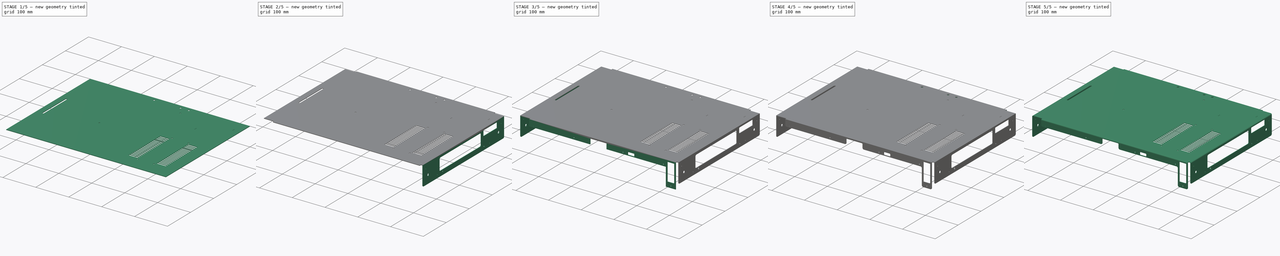
[diagram: build sequence overview — one tinted view per stage of 5, left to right]
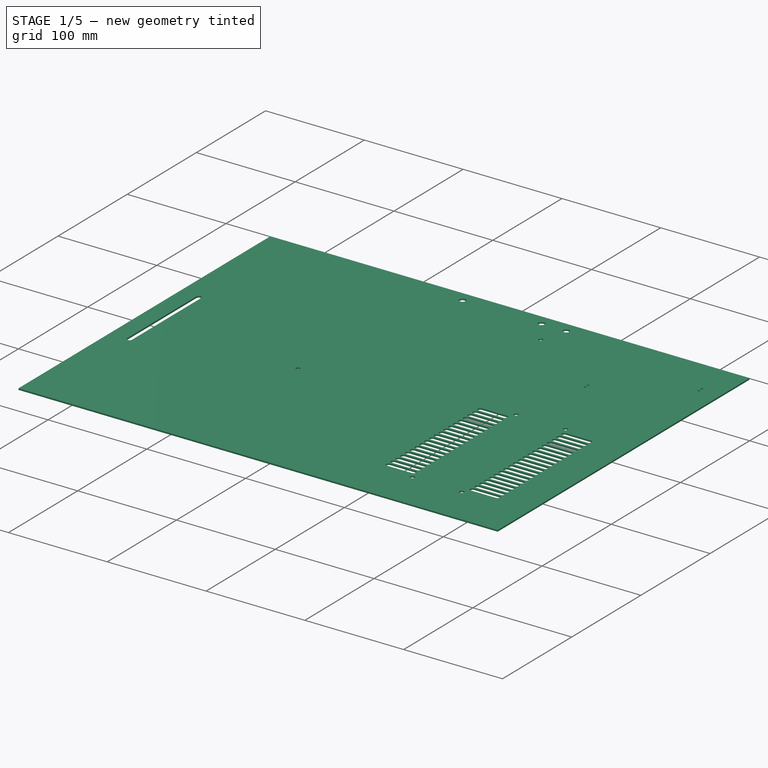
[diagram: stage 1 of 5 — iso view after this stage's code; geometry added in this stage tinted green]
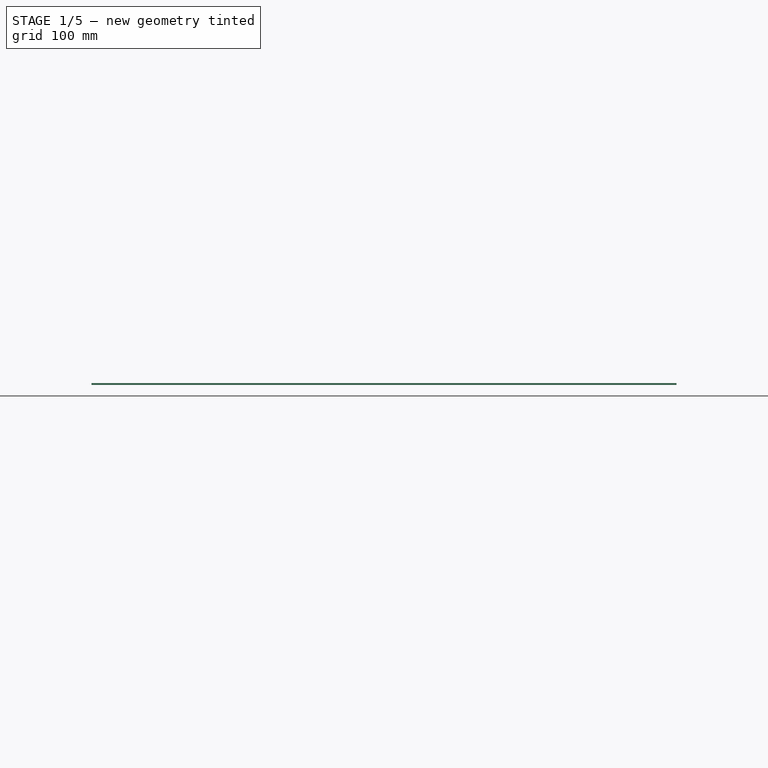
[diagram: stage 1 of 5 — front view after this stage's code; geometry added in this stage tinted green]
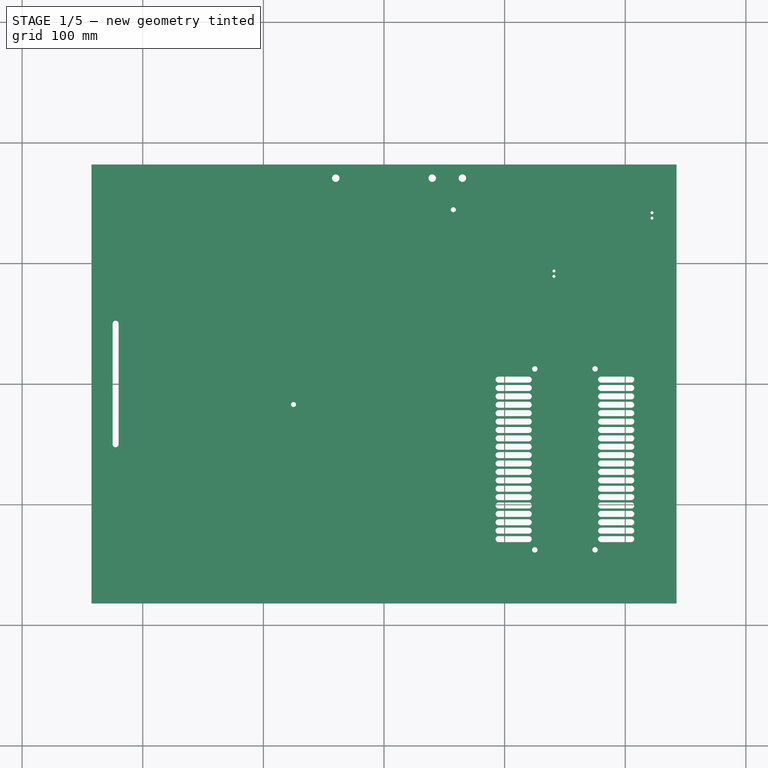
[diagram: stage 1 of 5 — top view after this stage's code; geometry added in this stage tinted green]
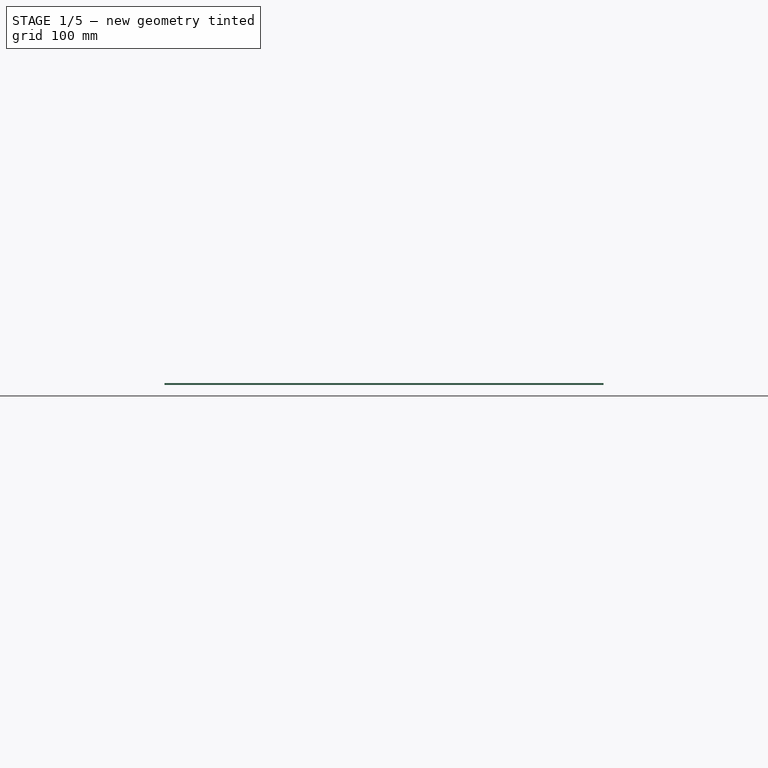
[diagram: stage 1 of 5 — right view after this stage's code; geometry added in this stage tinted green]
FCSTD DOCUMENT  (FreeCAD 0.14R3310 (Git))
Label: 13. PLACA BASE ESTRUCTURA
License: CC-BY 3.0
LicenseURL: http://creativecommons.org/licenses/by/3.0/
objects: PartDesign::Fillet×10, Sketcher::SketchObject×7, PartDesign::Pad×6, Part::FeaturePython×1, Part::Cut×1, PartDesign::Pocket×1, PartDesign::Chamfer×1
note: 34 computed .brp shape members not serialized (recipe doc carries the construction recipe); baked Part::Feature solids carry a one-line shape summary decoded from their .brp

FEATURE [Sketcher::SketchObject] Sketch
  sketch-geometry (23):
    g0: LineSegment StartX=-242.5 StartY=182 StartZ=0 EndX=242.5 EndY=182 EndZ=0
    g1: LineSegment StartX=242.5 StartY=182 StartZ=0 EndX=242.5 EndY=-182 EndZ=0
    g2: LineSegment StartX=242.5 StartY=-182 StartZ=0 EndX=-242.5 EndY=-182 EndZ=0
    g3: LineSegment StartX=-242.5 StartY=-182 StartZ=0 EndX=-242.5 EndY=182 EndZ=0
    g4: LineSegment StartX=-225 StartY=50 StartZ=0 EndX=-225 EndY=-50 EndZ=0
    g5: LineSegment StartX=-220 StartY=50 StartZ=0 EndX=-220 EndY=-50 EndZ=0
    g6: ArcOfCircle CenterX=-222.5 CenterY=50 CenterZ=0 NormalX=0 NormalY=0 NormalZ=1 Radius=2.5 StartAngle=6.329e-09 EndAngle=3.14159
    g7: ArcOfCircle CenterX=-222.5 CenterY=-50 CenterZ=0 NormalX=0 NormalY=0 NormalZ=1 Radius=2.5 StartAngle=3.14159 EndAngle=6.28319
    g8: Circle CenterX=-75 CenterY=-17 CenterZ=0 NormalX=0 NormalY=0 NormalZ=1 Radius=2.07
    g9: LineSegment [constr] StartX=-75 StartY=170.7 StartZ=0 EndX=75 EndY=170.7 EndZ=0
    g10: Circle CenterX=-40 CenterY=170.7 CenterZ=0 NormalX=0 NormalY=0 NormalZ=1 Radius=3.1
    g11: Circle CenterX=40 CenterY=170.7 CenterZ=0 NormalX=0 NormalY=0 NormalZ=1 Radius=3.1
    g12: Circle CenterX=65 CenterY=170.7 CenterZ=0 NormalX=0 NormalY=0 NormalZ=1 Radius=3.1
    g13: Circle CenterX=57.5 CenterY=144.5 CenterZ=0 NormalX=0 NormalY=0 NormalZ=1 Radius=2.07
    g14: Circle CenterX=222.17 CenterY=142 CenterZ=0 NormalX=0 NormalY=0 NormalZ=1 Radius=1.23
    g15: Circle CenterX=222.17 CenterY=137.5 CenterZ=0 NormalX=0 NormalY=0 NormalZ=1 Radius=1.23
    g16: Circle CenterX=140.89 CenterY=93.74 CenterZ=0 NormalX=0 NormalY=0 NormalZ=1 Radius=1.23
    g17: Circle CenterX=140.89 CenterY=89.24 CenterZ=0 NormalX=0 NormalY=0 NormalZ=1 Radius=1.23
    g18: LineSegment [constr] StartX=150 StartY=0 StartZ=0 EndX=150 EndY=-182 EndZ=0
    g19: Circle CenterX=125 CenterY=12.5 CenterZ=0 NormalX=0 NormalY=0 NormalZ=1 Radius=2.25
    g20: Circle CenterX=125 CenterY=-137.5 CenterZ=0 NormalX=0 NormalY=0 NormalZ=1 Radius=2.25
    g21: Circle CenterX=175 CenterY=-137.5 CenterZ=0 NormalX=0 NormalY=0 NormalZ=1 Radius=2.25
    g22: Circle CenterX=175 CenterY=12.5 CenterZ=0 NormalX=0 NormalY=0 NormalZ=1 Radius=2.25
  constraints (70):
    c: Coincident(g0,g1)
    c: Coincident(g1,g2)
    c: Coincident(g2,g3)
    c: Coincident(g3,g0)
    c: Horizontal(g0)
    c: Horizontal(g2)
    c: Vertical(g1)
    c: Vertical(g3)
    c: Symmetric(g0,g1,g-1)
    c: Distance(g0) = 485
    c: Distance(g3) = 364
    c: Vertical(g4)
    c: Vertical(g5)
    c: Coincident(g6,g4)
    c: Coincident(g6,g5)
    c: Tangent(g6,g5)
    c: Tangent(g4,g6)
    c: Coincident(g7,g5)
    c: Coincident(g7,g4)
    c: Tangent(g7,g4)
    c: Tangent(g7,g5)
    c: Symmetric(g7,g6,g-1)
    c: DistanceY(g5) = -100
    c: Distance(g4,g3) = 17.5
    c: Radius(g7) = 2.5
    c: DistanceY(g-1,g8) = -17
    c: DistanceX(g-2,g8) = -75
    c: Radius(g8) = 2.07
    c: Horizontal(g9)
    c: Symmetric(g9,g9,g-2)
    c: DistanceX(g9) = 150
    c: Distance(g9,g0) = 11.3
    c: PointOnObject(g10,g9)
    c: PointOnObject(g12,g9)
    c: Equal(g11,g12)
    c: Equal(g12,g10)
    c: Radius(g10) = 3.1
    c: DistanceX(g-2,g10) = -40
    c: Distance(g10,g11) = 80
    c: PointOnObject(g11,g9)
    c: Distance(g12,g11) = 25
    c: Radius(g13) = 2.07
    c: DistanceX(g-2,g13) = 57.5
    c: Distance(g13,g0) = 37.5
    c: Equal(g14,g15)
    c: Radius(g14) = 1.23
    c: Distance(g14,g0) = 40
    c: Distance(g14,g1) = 20.33
    c: Distance(g15,g1) = 20.33
    c: Distance(g15,g14) = 4.5
    c: Equal(g17,g16)
    c: Equal(g16,g15)
    c: Distance(g16,g0) = 88.26
    c: Distance(g16,g1) = 101.61
    c: Distance(g17,g1) = 101.61
    c: Distance(g17,g16) = 4.5
    c: PointOnObject(g18,g-1)
    c: PointOnObject(g18,g2)
    c: Vertical(g18)
    c: DistanceX(g-2,g18) = 150
    c: Distance(g19,g18) = 25
    c: DistanceY(g-1,g19) = 12.5
    c: Radius(g19) = 2.25
    c: Equal(g20,g19)
    c: Distance(g20,g19) = 150
    c: Distance(g20,g18) = 25
    c: Equal(g21,g20)
    c: Symmetric(g21,g20,g18)
    c: Equal(g22,g19)
    c: Symmetric(g22,g19,g18)
FEATURE [PartDesign::Pad] Pad
  Length = 1.5
  Length2 = 100
  Sketch = -> Sketch
  Type = 0
FEATURE [Sketcher::SketchObject] Sketch001
  sketch-geometry (8):
    g0: LineSegment StartX=95 StartY=6.15 StartZ=0 EndX=120 EndY=6.15 EndZ=0
    g1: LineSegment StartX=95 StartY=1.15 StartZ=0 EndX=120 EndY=1.15 EndZ=0
    g2: LineSegment StartX=180 StartY=6.15 StartZ=0 EndX=205 EndY=6.15 EndZ=0
    g3: LineSegment StartX=180 StartY=1.15 StartZ=0 EndX=205 EndY=1.15 EndZ=0
    g4: ArcOfCircle CenterX=95 CenterY=3.65 CenterZ=0 NormalX=0 NormalY=0 NormalZ=1 Radius=2.5 StartAngle=1.5708 EndAngle=4.71239
    g5: ArcOfCircle CenterX=120 CenterY=3.65 CenterZ=0 NormalX=0 NormalY=0 NormalZ=1 Radius=2.5 StartAngle=4.71239 EndAngle=7.85397
    g6: ArcOfCircle CenterX=180 CenterY=3.65 CenterZ=0 NormalX=0 NormalY=0 NormalZ=1 Radius=2.5 StartAngle=1.5708 EndAngle=4.71239
    g7: ArcOfCircle CenterX=205 CenterY=3.65 CenterZ=0 NormalX=0 NormalY=0 NormalZ=1 Radius=2.5 StartAngle=4.7124 EndAngle=7.85398
  constraints (28):
    c: Horizontal(g0)
    c: Horizontal(g1)
    c: Horizontal(g2)
    c: Horizontal(g3)
    c: Coincident(g4,g0)
    c: Coincident(g4,g1)
    c: Coincident(g5,g0)
    c: Coincident(g5,g1)
    c: Tangent(g0,g5)
    c: Tangent(g4,g0)
    c: Tangent(g1,g4)
    c: Tangent(g1,g5)
    c: DistanceX(g0) = 25
    c: Radius(g5) = 2.5
    c: DistanceY(g-1,g5) = 3.65
    c: DistanceX(g-2,g5) = 120
    c: DistanceX(g3) = 25
    c: Coincident(g6,g2)
    c: Coincident(g6,g3)
    c: Tangent(g2,g6)
    c: Tangent(g3,g6)
    c: Coincident(g7,g2)
    c: Coincident(g7,g3)
    c: Radius(g7) = 2.5
    c: DistanceY(g-1,g6) = 3.65
    c: DistanceX(g-2,g6) = 180
    c: Tangent(g7,g2)
    c: Tangent(g7,g3)
FEATURE [PartDesign::Pad] Pad001
  Length = 5
  Length2 = 100
  Midplane = true
  Sketch = -> Sketch001
  Type = 0
FEATURE [Part::FeaturePython] Array  # Draft array (typed FeaturePython)
  Angle = 360
  ArrayType = 0
  Axis = (0,0,1)
  Base = -> Pad001
  Center = (0,0,0)
  IntervalX = (1,0,0)
  IntervalY = (0,-6.96,0)
  IntervalZ = (0,0,1)
  NumberPolar = 1
  NumberX = 1
  NumberY = 20
  NumberZ = 1
FEATURE [Part::Cut] Cut
  Base = -> Pad
  Tool = -> Array
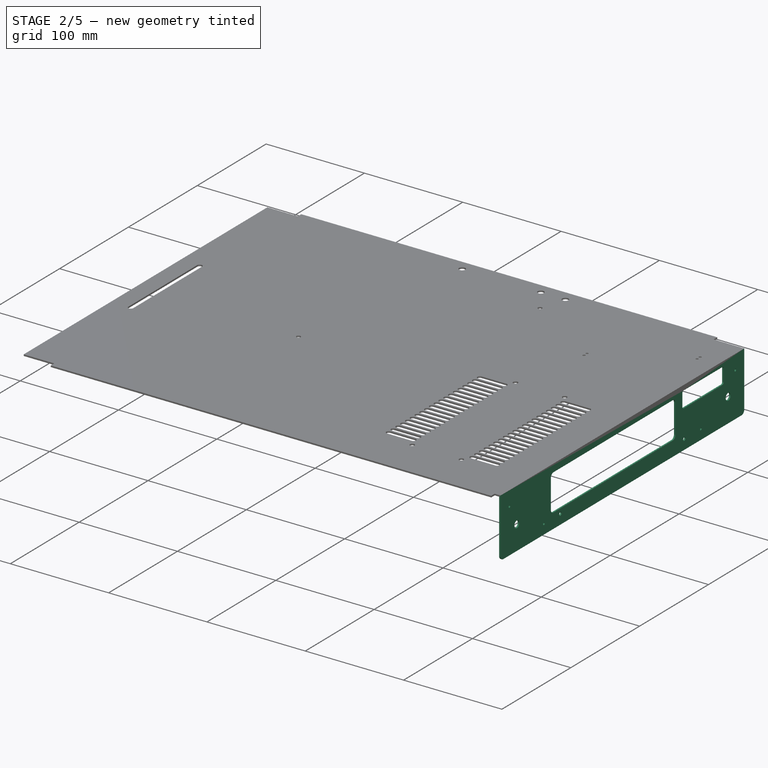
[diagram: stage 2 of 5 — iso view after this stage's code; geometry added in this stage tinted green]
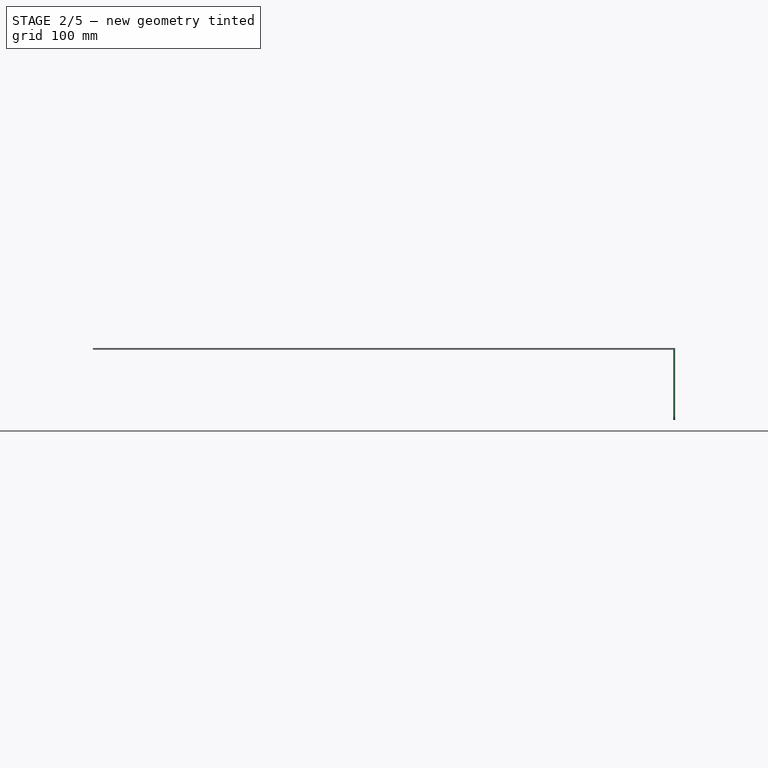
[diagram: stage 2 of 5 — front view after this stage's code; geometry added in this stage tinted green]
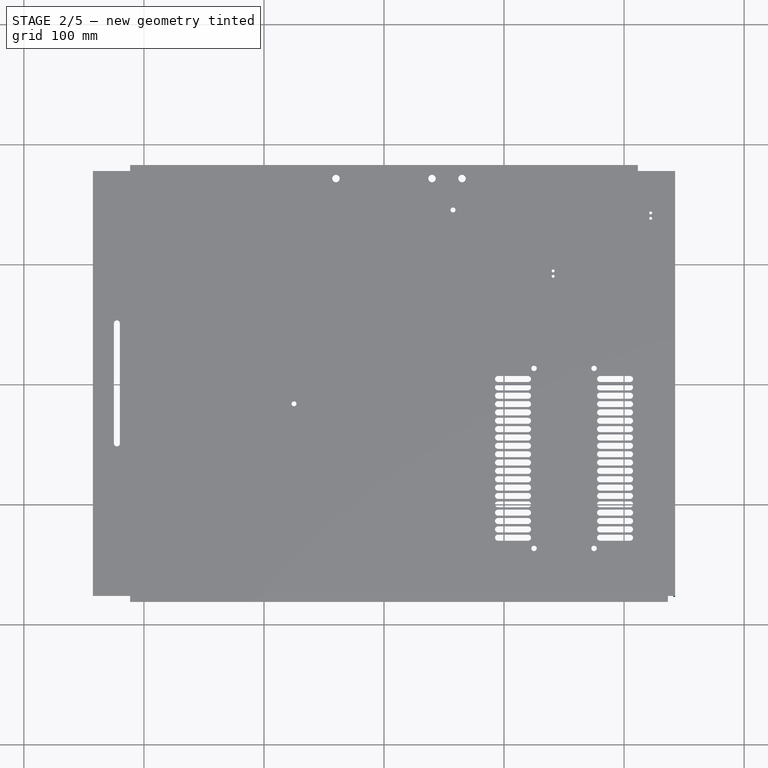
[diagram: stage 2 of 5 — top view after this stage's code; geometry added in this stage tinted green]
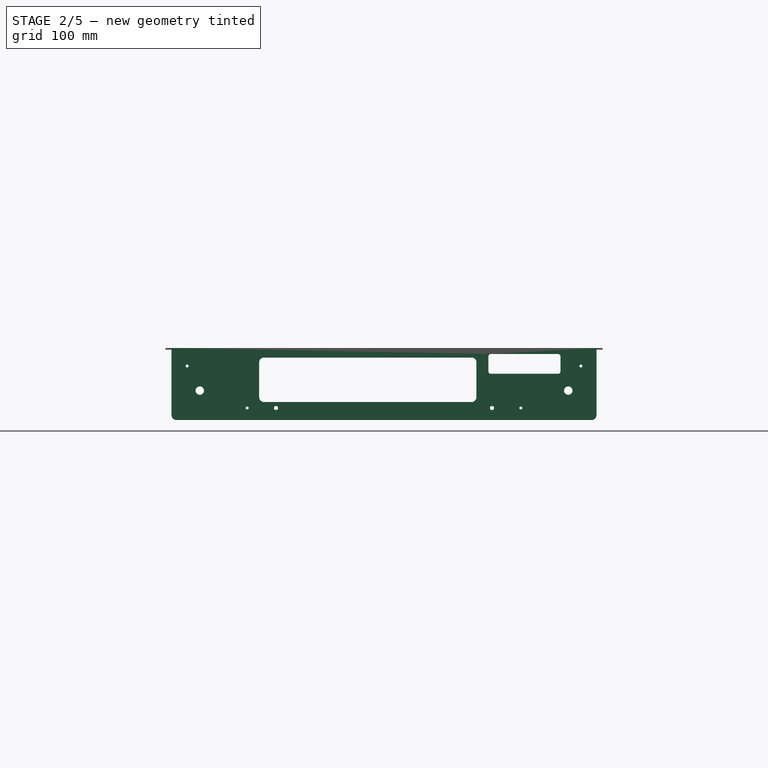
[diagram: stage 2 of 5 — right view after this stage's code; geometry added in this stage tinted green]
FEATURE [Sketcher::SketchObject] Sketch002
  ExternalGeometry = -> [Cut]
  Placement = pos=(0,0,1.5) rot=(0,0,1;0rad)
  Support = -> Cut [Face5]
  sketch-geometry (16):
    g0: LineSegment StartX=-242.5 StartY=182 StartZ=0 EndX=-211.5 EndY=182 EndZ=0
    g1: LineSegment StartX=-211.5 StartY=182 StartZ=0 EndX=-211.5 EndY=177 EndZ=0
    g2: LineSegment StartX=-211.5 StartY=177 StartZ=0 EndX=-242.5 EndY=177 EndZ=0
    g3: LineSegment StartX=-242.5 StartY=177 StartZ=0 EndX=-242.5 EndY=182 EndZ=0
    g4: LineSegment StartX=-242.5 StartY=-182 StartZ=0 EndX=-211.5 EndY=-182 EndZ=0
    g5: LineSegment StartX=-211.5 StartY=-182 StartZ=0 EndX=-211.5 EndY=-177 EndZ=0
    g6: LineSegment StartX=-211.5 StartY=-177 StartZ=0 EndX=-242.5 EndY=-177 EndZ=0
    g7: LineSegment StartX=-242.5 StartY=-177 StartZ=0 EndX=-242.5 EndY=-182 EndZ=0
    g8: LineSegment StartX=242.5 StartY=182 StartZ=0 EndX=211.5 EndY=182 EndZ=0
    g9: LineSegment StartX=211.5 StartY=182 StartZ=0 EndX=211.5 EndY=177 EndZ=0
    g10: LineSegment StartX=211.5 StartY=177 StartZ=0 EndX=242.5 EndY=177 EndZ=0
    g11: LineSegment StartX=242.5 StartY=177 StartZ=0 EndX=242.5 EndY=182 EndZ=0
    g12: LineSegment StartX=242.5 StartY=-182 StartZ=0 EndX=236.5 EndY=-182 EndZ=0
    g13: LineSegment StartX=236.5 StartY=-182 StartZ=0 EndX=236.5 EndY=-177 EndZ=0
    g14: LineSegment StartX=236.5 StartY=-177 StartZ=0 EndX=242.5 EndY=-177 EndZ=0
    g15: LineSegment StartX=242.5 StartY=-177 StartZ=0 EndX=242.5 EndY=-182 EndZ=0
  constraints (42):
    c: Coincident(g0,g1)
    c: Coincident(g1,g2)
    c: Coincident(g2,g3)
    c: Coincident(g3,g0)
    c: Horizontal(g0)
    c: Horizontal(g2)
    c: Vertical(g1)
    c: Vertical(g3)
    c: Coincident(g0,g-4)
    c: DistanceX(g2) = -31
    c: DistanceY(g1) = -5
    c: Coincident(g4,g5)
    c: Coincident(g5,g6)
    c: Coincident(g6,g7)
    c: Coincident(g7,g4)
    c: Horizontal(g4)
    c: Horizontal(g6)
    c: Vertical(g5)
    c: Vertical(g7)
    c: Coincident(g4,g-4)
    c: Symmetric(g5,g1,g-1)
    c: Coincident(g8,g9)
    c: Coincident(g9,g10)
    c: Coincident(g10,g11)
    c: Coincident(g11,g8)
    c: Horizontal(g8)
    c: Horizontal(g10)
    c: Vertical(g9)
    c: Vertical(g11)
    c: Coincident(g8,g-3)
    c: Symmetric(g9,g1,g-2)
    c: Coincident(g12,g13)
    c: Coincident(g13,g14)
    c: Coincident(g14,g15)
    c: Coincident(g15,g12)
    c: Horizontal(g12)
    c: Horizontal(g14)
    c: Vertical(g13)
    c: Vertical(g15)
    c: Coincident(g12,g-5)
    c: Distance(g14) = 6
    c: Distance(g13) = 5
FEATURE [PartDesign::Pocket] Pocket
  Length = 5
  Sketch = -> Sketch002
  Type = 0
FEATURE [Sketcher::SketchObject] Sketch003
  ExternalGeometry = -> [Pocket]
  Placement = pos=(242.5,0,0) rot=(0.57735,0.57735,0.57735;2.0944rad)
  Support = -> Pocket [Face8]
  sketch-geometry (20):
    g0: LineSegment StartX=-177 StartY=1.5 StartZ=0 EndX=177 EndY=1.5 EndZ=0
    g1: LineSegment StartX=177 StartY=1.5 StartZ=0 EndX=177 EndY=-58.5 EndZ=0
    g2: LineSegment StartX=177 StartY=-58.5 StartZ=0 EndX=-177 EndY=-58.5 EndZ=0
    g3: LineSegment StartX=-177 StartY=-58.5 StartZ=0 EndX=-177 EndY=1.5 EndZ=0
    g4: Circle CenterX=-164 CenterY=-13.5 CenterZ=0 NormalX=0 NormalY=0 NormalZ=1 Radius=1.23
    g5: Circle CenterX=-153.5 CenterY=-34 CenterZ=0 NormalX=0 NormalY=0 NormalZ=1 Radius=3.5
    g6: Circle CenterX=-114 CenterY=-48.5 CenterZ=0 NormalX=0 NormalY=0 NormalZ=1 Radius=1.23
    g7: Circle CenterX=-90 CenterY=-48.5 CenterZ=0 NormalX=0 NormalY=0 NormalZ=1 Radius=1.7
    g8: Circle CenterX=90 CenterY=-48.5 CenterZ=0 NormalX=0 NormalY=0 NormalZ=1 Radius=1.7
    g9: Circle CenterX=114 CenterY=-48.5 CenterZ=0 NormalX=0 NormalY=0 NormalZ=1 Radius=1.23
    g10: Circle CenterX=153.5 CenterY=-34 CenterZ=0 NormalX=0 NormalY=0 NormalZ=1 Radius=3.5
    g11: Circle CenterX=164 CenterY=-13.5 CenterZ=0 NormalX=0 NormalY=0 NormalZ=1 Radius=1.23
    g12: LineSegment StartX=-104 StartY=-6.5 StartZ=0 EndX=77 EndY=-6.5 EndZ=0
    g13: LineSegment StartX=77 StartY=-6.5 StartZ=0 EndX=77 EndY=-43.5 EndZ=0
    g14: LineSegment StartX=77 StartY=-43.5 StartZ=0 EndX=-104 EndY=-43.5 EndZ=0
    g15: LineSegment StartX=-104 StartY=-43.5 StartZ=0 EndX=-104 EndY=-6.5 EndZ=0
    g16: LineSegment StartX=87 StartY=-3.5 StartZ=0 EndX=147 EndY=-3.5 EndZ=0
    g17: LineSegment StartX=147 StartY=-3.5 StartZ=0 EndX=147 EndY=-20 EndZ=0
    g18: LineSegment StartX=147 StartY=-20 StartZ=0 EndX=87 EndY=-20 EndZ=0
    g19: LineSegment StartX=87 StartY=-20 StartZ=0 EndX=87 EndY=-3.5 EndZ=0
  constraints (55):
    c: Coincident(g0,g1)
    c: Coincident(g1,g2)
    c: Coincident(g2,g3)
    c: Coincident(g3,g0)
    c: Horizontal(g0)
    c: Horizontal(g2)
    c: Vertical(g1)
    c: Vertical(g3)
    c: Coincident(g0,g-4)
    c: Coincident(g0,g-3)
    c: Distance(g1) = 60
    c: Equal(g6,g4)
    c: Distance(g4,g3) = 13
    c: Distance(g4,g0) = 15
    c: Distance(g5,g3) = 23.5
    c: Distance(g5,g0) = 35.5
    c: Distance(g6,g2) = 10
    c: Distance(g6,g3) = 63
    c: Radius(g6) = 1.23
    c: Radius(g5) = 3.5
    c: Distance(g7,g2) = 10
    c: Distance(g7,g6) = 24
    c: Radius(g7) = 1.7
    c: Equal(g8,g7)
    c: Symmetric(g8,g7,g-2)
    c: Symmetric(g9,g6,g-2)
    c: Equal(g6,g9)
    c: Symmetric(g11,g4,g-2)
    c: Symmetric(g10,g5,g-2)
    c: Equal(g5,g10)
    c: Equal(g11,g4)
    c: Coincident(g12,g13)
    c: Coincident(g13,g14)
    c: Coincident(g14,g15)
    c: Coincident(g15,g12)
    c: Horizontal(g12)
    c: Horizontal(g14)
    c: Vertical(g13)
    c: Vertical(g15)
    c: DistanceX(g-2,g12) = 77
    c: Distance(g12) = 181
    c: Distance(g13,g2) = 15
    c: Distance(g15) = 37
    c: Coincident(g16,g17)
    c: Coincident(g17,g18)
    c: Coincident(g18,g19)
    c: Coincident(g19,g16)
    c: Horizontal(g16)
    c: Horizontal(g18)
    c: Vertical(g17)
    c: Vertical(g19)
    c: Distance(g17) = 16.5
    c: Distance(g16) = 60
    c: Distance(g16,g13) = 10
    c: Distance(g18,g2) = 38.5
FEATURE [PartDesign::Pad] Pad002
  Length = 1.5
  Length2 = 100
  Reversed = true
  Sketch = -> Sketch003
  Type = 0
FEATURE [PartDesign::Fillet] Fillet
  Base = -> Pad002 [Edge583,Edge586,Edge585,Edge588,Edge590,Edge582]
  Radius = 4
FEATURE [PartDesign::Fillet] Fillet001
  Base = -> Fillet [Edge231,Edge233,Edge229,Edge228]
  Radius = 2
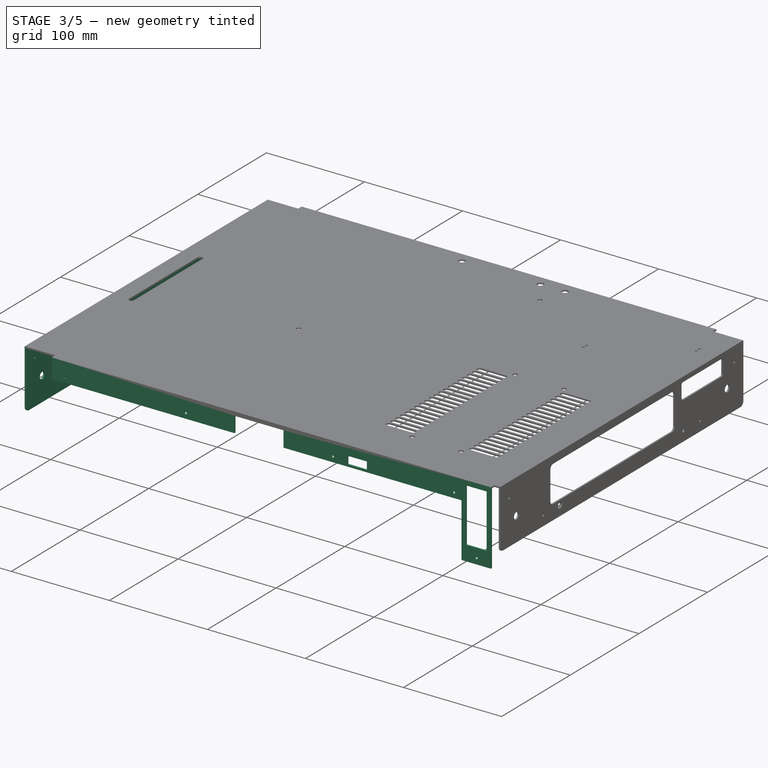
[diagram: stage 3 of 5 — iso view after this stage's code; geometry added in this stage tinted green]
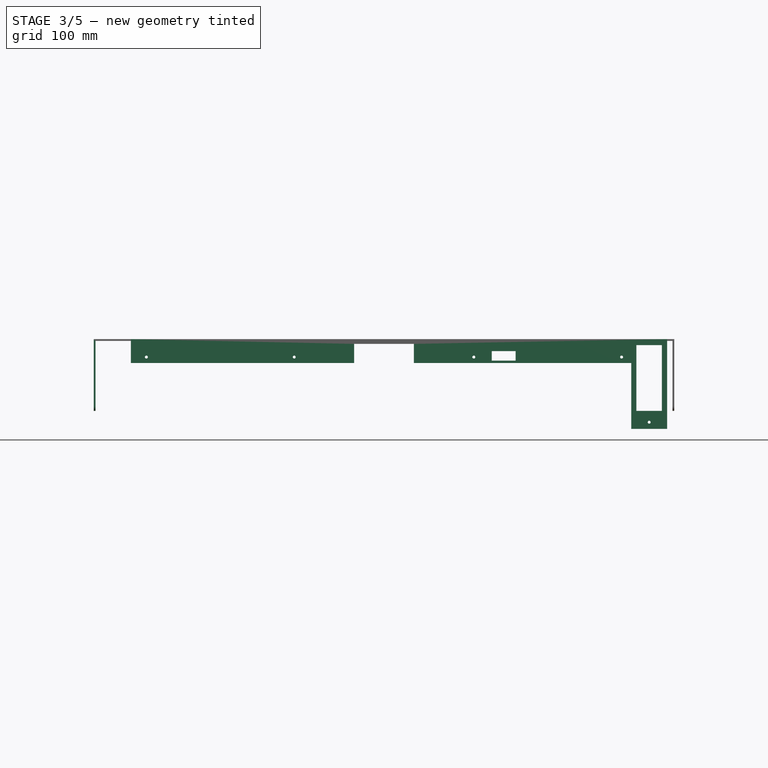
[diagram: stage 3 of 5 — front view after this stage's code; geometry added in this stage tinted green]
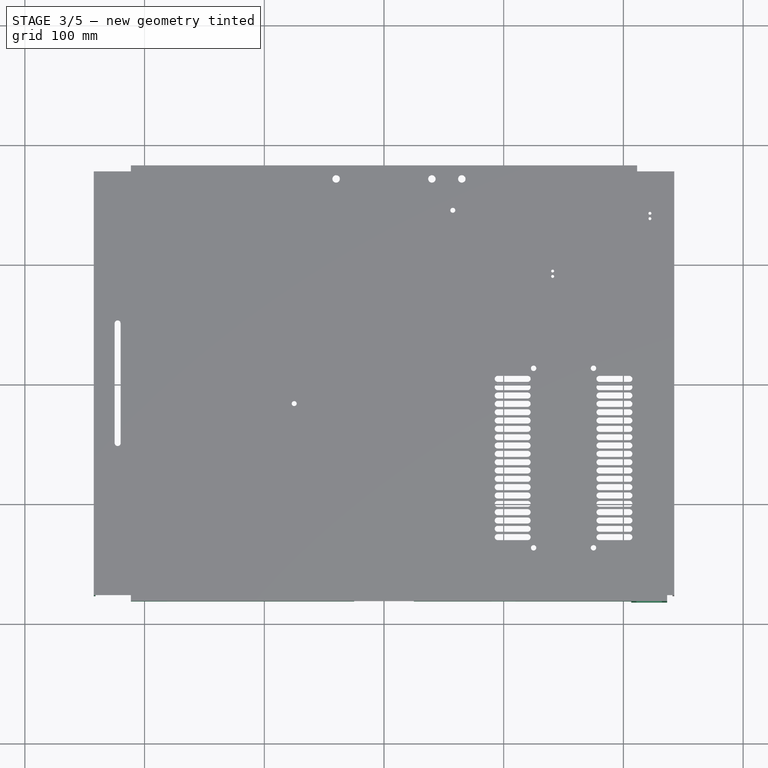
[diagram: stage 3 of 5 — top view after this stage's code; geometry added in this stage tinted green]
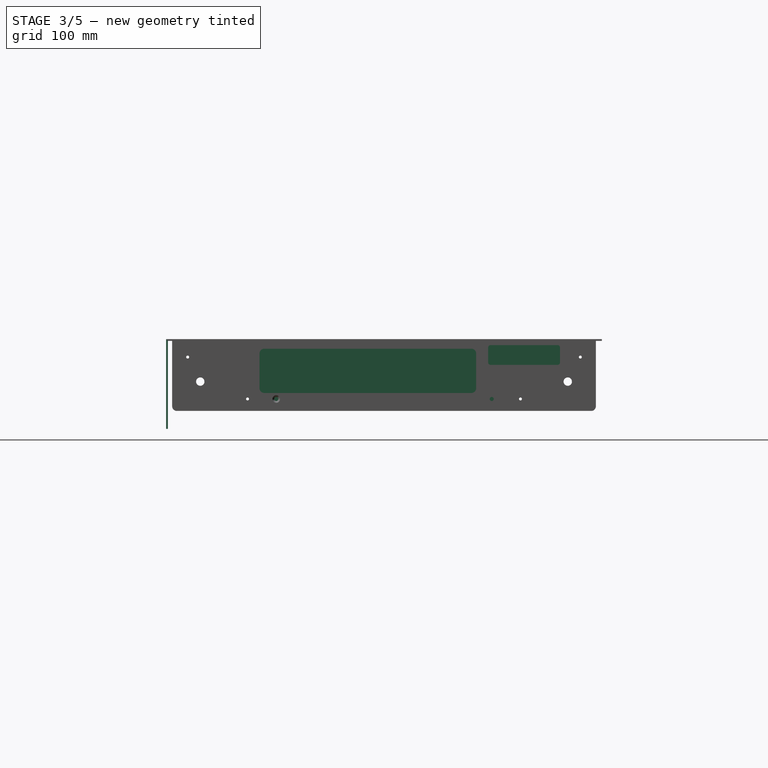
[diagram: stage 3 of 5 — right view after this stage's code; geometry added in this stage tinted green]
FEATURE [PartDesign::Chamfer] Chamfer
  Base = -> Fillet001 [Edge255]
  Size = 1.45
FEATURE [Sketcher::SketchObject] Sketch004
  ExternalGeometry = -> [Chamfer]
  Placement = pos=(-242.5,0,0) rot=(0.57735,-0.57735,-0.57735;2.0944rad)
  Support = -> Chamfer [Face41]
  sketch-geometry (10):
    g0: LineSegment StartX=-177 StartY=1.5 StartZ=0 EndX=177 EndY=1.5 EndZ=0
    g1: LineSegment StartX=177 StartY=1.5 StartZ=0 EndX=177 EndY=-58.5 EndZ=0
    g2: LineSegment StartX=177 StartY=-58.5 StartZ=0 EndX=-177 EndY=-58.5 EndZ=0
    g3: LineSegment StartX=-177 StartY=-58.5 StartZ=0 EndX=-177 EndY=1.5 EndZ=0
    g4: Circle CenterX=164 CenterY=-13.5 CenterZ=0 NormalX=0 NormalY=0 NormalZ=1 Radius=1.23
    g5: Circle CenterX=114 CenterY=-48.5 CenterZ=0 NormalX=0 NormalY=0 NormalZ=1 Radius=1.23
    g6: Circle CenterX=153.5 CenterY=-34 CenterZ=0 NormalX=0 NormalY=0 NormalZ=1 Radius=3.5
    g7: Circle CenterX=-153.5 CenterY=-34 CenterZ=0 NormalX=0 NormalY=0 NormalZ=1 Radius=3.5
    g8: Circle CenterX=-164 CenterY=-13.5 CenterZ=0 NormalX=0 NormalY=0 NormalZ=1 Radius=1.23
    g9: Circle CenterX=-114 CenterY=-48.5 CenterZ=0 NormalX=0 NormalY=0 NormalZ=1 Radius=1.23
  constraints (26):
    c: Coincident(g0,g1)
    c: Coincident(g1,g2)
    c: Coincident(g2,g3)
    c: Coincident(g3,g0)
    c: Horizontal(g0)
    c: Horizontal(g2)
    c: Vertical(g1)
    c: Vertical(g3)
    c: Coincident(g0,g-4)
    c: Coincident(g0,g-3)
    c: Distance(g1) = 60
    c: Equal(g5,g4)
    c: Distance(g4,g1) = 13
    c: Distance(g4,g2) = 45
    c: Radius(g4) = 1.23
    c: Distance(g5,g2) = 10
    c: Distance(g5,g1) = 63
    c: Radius(g6) = 3.5
    c: Distance(g6,g2) = 24.5
    c: Distance(g6,g1) = 23.5
    c: Symmetric(g9,g5,g-2)
    c: Equal(g9,g8)
    c: Equal(g8,g5)
    c: Symmetric(g8,g4,g-2)
    c: Equal(g7,g6)
    c: Symmetric(g6,g7,g-2)
FEATURE [PartDesign::Pad] Pad003
  Length = 1.5
  Length2 = 100
  Reversed = true
  Sketch = -> Sketch004
  Type = 0
FEATURE [PartDesign::Fillet] Fillet002
  Base = -> Pad003 [Edge2,Edge1]
  Radius = 4
FEATURE [Sketcher::SketchObject] Sketch005
  ExternalGeometry = -> [Fillet002]
  Placement = pos=(0,-182,0) rot=(1,0,0;1.5708rad)
  Support = -> Fillet002 [Face17]
  sketch-geometry (23):
    g0: LineSegment StartX=-211.5 StartY=1.5 StartZ=0 EndX=236.5 EndY=1.5 EndZ=0
    g1: LineSegment StartX=-211.5 StartY=-18.5 StartZ=0 EndX=-211.5 EndY=1.5 EndZ=0
    g2: LineSegment StartX=-25 StartY=-2.5 StartZ=0 EndX=25 EndY=-2.5 EndZ=0
    g3: LineSegment StartX=25 StartY=-2.5 StartZ=0 EndX=25 EndY=-18.5 EndZ=0
    g4: LineSegment StartX=-25 StartY=-18.5 StartZ=0 EndX=-25 EndY=-2.5 EndZ=0
    g5: LineSegment StartX=-25 StartY=-18.5 StartZ=0 EndX=-211.5 EndY=-18.5 EndZ=0
    g6: LineSegment StartX=236.5 StartY=1.5 StartZ=0 EndX=236.5 EndY=-73.5 EndZ=0
    g7: LineSegment StartX=236.5 StartY=-73.5 StartZ=0 EndX=206.5 EndY=-73.5 EndZ=0
    g8: LineSegment StartX=206.5 StartY=-73.5 StartZ=0 EndX=206.5 EndY=-18.5 EndZ=0
    g9: LineSegment StartX=25 StartY=-18.5 StartZ=0 EndX=206.5 EndY=-18.5 EndZ=0
    g10: LineSegment StartX=210.85 StartY=-3.5 StartZ=0 EndX=232.15 EndY=-3.5 EndZ=0
    g11: LineSegment StartX=232.15 StartY=-3.5 StartZ=0 EndX=232.15 EndY=-58.4 EndZ=0
    g12: LineSegment StartX=232.15 StartY=-58.4 StartZ=0 EndX=210.85 EndY=-58.4 EndZ=0
    g13: LineSegment StartX=210.85 StartY=-58.4 StartZ=0 EndX=210.85 EndY=-3.5 EndZ=0
    g14: LineSegment StartX=90 StartY=-8.5 StartZ=0 EndX=110 EndY=-8.5 EndZ=0
    g15: LineSegment StartX=110 StartY=-8.5 StartZ=0 EndX=110 EndY=-16.5 EndZ=0
    g16: LineSegment StartX=110 StartY=-16.5 StartZ=0 EndX=90 EndY=-16.5 EndZ=0
    g17: LineSegment StartX=90 StartY=-16.5 StartZ=0 EndX=90 EndY=-8.5 EndZ=0
    g18: Circle CenterX=221.5 CenterY=-67.9 CenterZ=0 NormalX=0 NormalY=0 NormalZ=1 Radius=1.23
    g19: Circle CenterX=-198.5 CenterY=-13.5 CenterZ=0 NormalX=0 NormalY=0 NormalZ=1 Radius=1.23
    g20: Circle CenterX=-75 CenterY=-13.5 CenterZ=0 NormalX=0 NormalY=0 NormalZ=1 Radius=1.23
    g21: Circle CenterX=75 CenterY=-13.5 CenterZ=0 NormalX=0 NormalY=0 NormalZ=1 Radius=1.23
    g22: Circle CenterX=198.5 CenterY=-13.5 CenterZ=0 NormalX=0 NormalY=0 NormalZ=1 Radius=1.23
  constraints (66):
    c: Coincident(g1,g0)
    c: Horizontal(g0)
    c: Vertical(g1)
    c: Coincident(g0,g-4)
    c: Coincident(g0,g-3)
    c: Distance(g1) = 20
    c: Coincident(g2,g3)
    c: Coincident(g4,g2)
    c: Horizontal(g2)
    c: Vertical(g3)
    c: Vertical(g4)
    c: Coincident(g5,g4)
    c: Horizontal(g5)
    c: Coincident(g1,g5)
    c: Symmetric(g2,g2,g-2)
    c: Distance(g2) = 50
    c: Symmetric(g4,g3,g-2)
    c: Distance(g2,g5) = 16
    c: Coincident(g6,g0)
    c: Vertical(g6)
    c: Distance(g6) = 75
    c: Coincident(g7,g6)
    c: Horizontal(g7)
    c: Distance(g7) = 30
    c: Coincident(g8,g7)
    c: Vertical(g8)
    c: Coincident(g9,g3)
    c: Horizontal(g9)
    c: Coincident(g9,g8)
    c: Coincident(g10,g11)
    c: Coincident(g11,g12)
    c: Coincident(g12,g13)
    c: Coincident(g13,g10)
    c: Horizontal(g10)
    c: Horizontal(g12)
    c: Vertical(g11)
    c: Vertical(g13)
    c: Distance(g10) = 21.3
    c: Distance(g11) = 54.9
    c: Distance(g12,g8) = 4.35
    c: Distance(g10,g0) = 5
    c: Coincident(g14,g15)
    c: Coincident(g15,g16)
    c: Coincident(g16,g17)
    c: Coincident(g17,g14)
    c: Horizontal(g14)
    c: Horizontal(g16)
    c: Vertical(g15)
    c: Vertical(g17)
    c: Distance(g16,g3) = 65
    c: Distance(g15,g14) = 8
    c: Distance(g14) = 20
    c: Distance(g16,g9) = 2
    c: Distance(g18,g7) = 5.6
    c: Distance(g18,g8) = 15
    c: Radius(g18) = 1.23
    c: Equal(g22,g21)
    c: Equal(g21,g20)
    c: Equal(g20,g19)
    c: Distance(g19,g1) = 13
    c: Distance(g19,g5) = 5
    c: Distance(g19,g20) = 123.5
    c: Distance(g20,g5) = 5
    c: Symmetric(g20,g21,g-2)
    c: Symmetric(g22,g19,g-2)
    c: Equal(g22,g18)
FEATURE [PartDesign::Pad] Pad004
  Length = 1.5
  Length2 = 100
  Reversed = true
  Sketch = -> Sketch005
  Type = 0
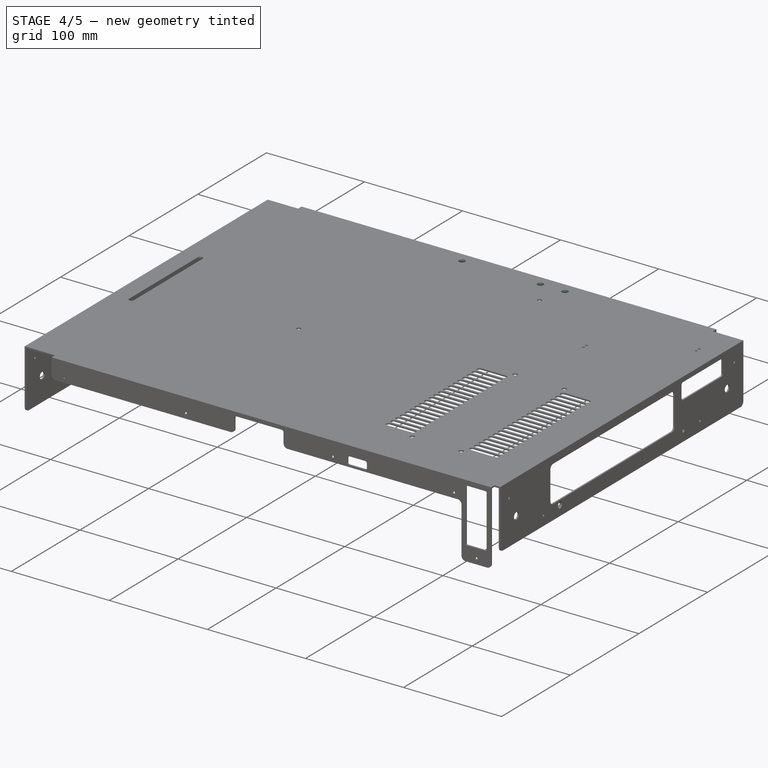
[diagram: stage 4 of 5 — iso view after this stage's code; geometry added in this stage tinted green]
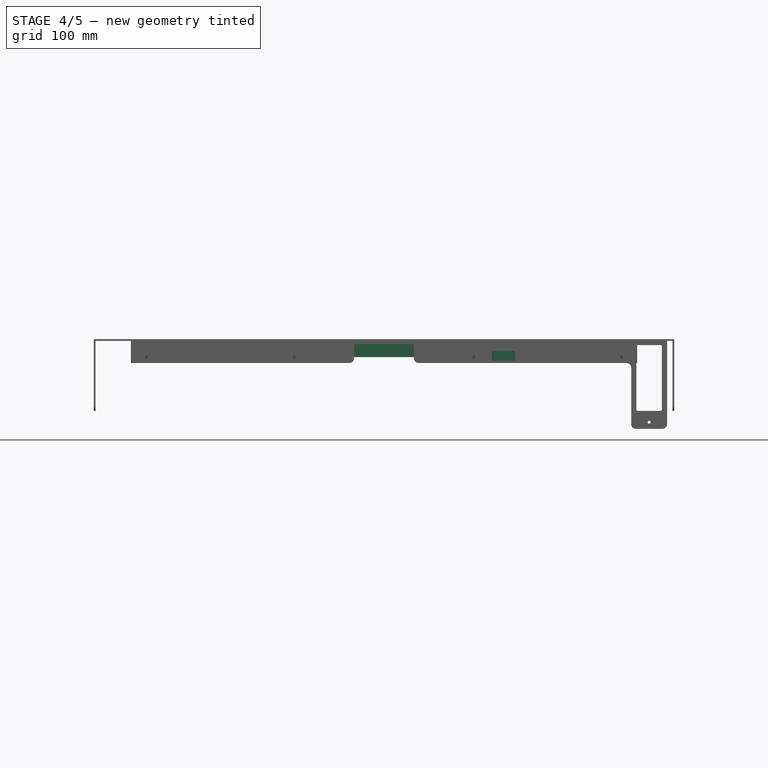
[diagram: stage 4 of 5 — front view after this stage's code; geometry added in this stage tinted green]
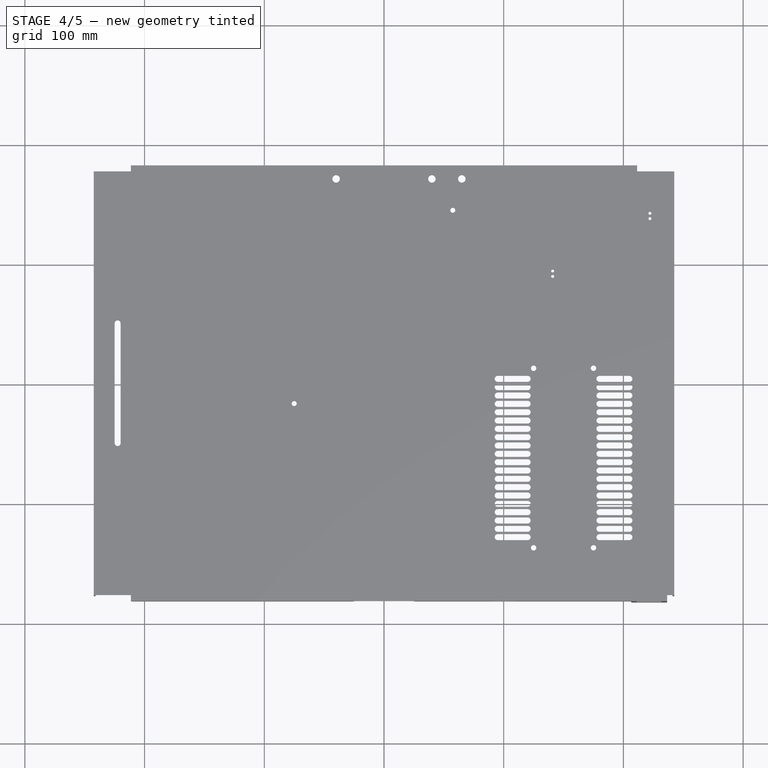
[diagram: stage 4 of 5 — top view after this stage's code; geometry added in this stage tinted green]
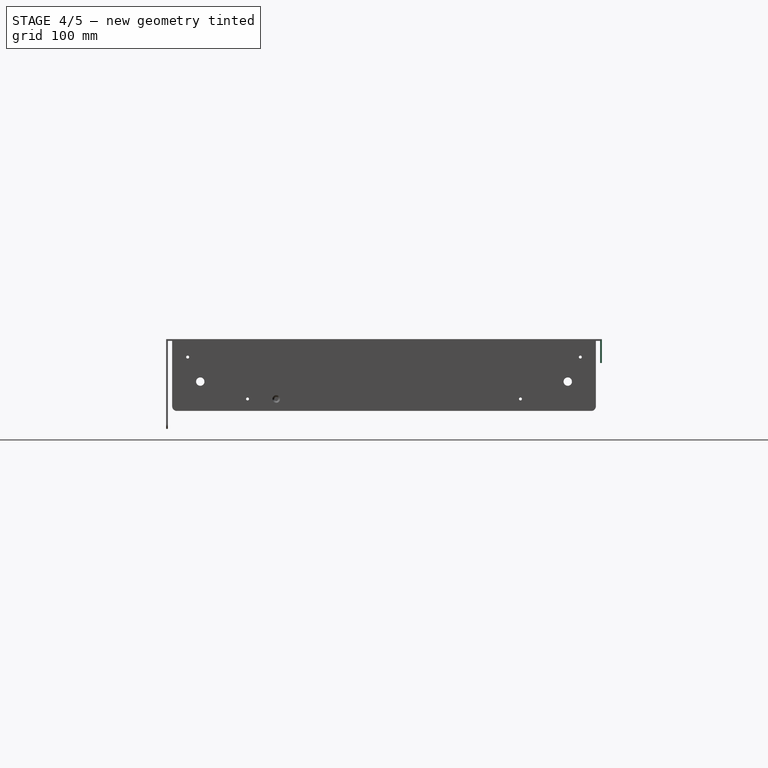
[diagram: stage 4 of 5 — right view after this stage's code; geometry added in this stage tinted green]
FEATURE [PartDesign::Fillet] Fillet003
  Base = -> Pad004 [Edge2,Edge31,Edge1,Edge35,Edge37,Edge33]
  Radius = 4
FEATURE [PartDesign::Fillet] Fillet004
  Base = -> Fillet003 [Edge64,Edge63,Edge270,Edge272,Edge271,Edge269]
  Radius = 2
FEATURE [PartDesign::Fillet] Fillet005
  Base = -> Fillet004 [Edge266,Edge262,Edge261,Edge264]
  Radius = 1
FEATURE [Sketcher::SketchObject] Sketch006
  ExternalGeometry = -> [Fillet005]
  Placement = pos=(0,182,0) rot=(0,0.707107,0.707107;3.14159rad)
  Support = -> Fillet005 [Face48]
  sketch-geometry (10):
    g0: LineSegment StartX=211.5 StartY=1.5 StartZ=0 EndX=-211.5 EndY=1.5 EndZ=0
    g1: LineSegment StartX=-211.5 StartY=1.5 StartZ=0 EndX=-211.5 EndY=-18.5 EndZ=0
    g2: LineSegment StartX=211.5 StartY=-18.5 StartZ=0 EndX=211.5 EndY=1.5 EndZ=0
    g3: LineSegment StartX=-52.5 StartY=-13.5 StartZ=0 EndX=52.5 EndY=-13.5 EndZ=0
    g4: LineSegment StartX=52.5 StartY=-13.5 StartZ=0 EndX=52.5 EndY=-18.5 EndZ=0
    g5: LineSegment StartX=-52.5 StartY=-18.5 StartZ=0 EndX=-52.5 EndY=-13.5 EndZ=0
    g6: LineSegment StartX=-211.5 StartY=-18.5 StartZ=0 EndX=-52.5 EndY=-18.5 EndZ=0
    g7: LineSegment StartX=211.5 StartY=-18.5 StartZ=0 EndX=52.5 EndY=-18.5 EndZ=0
    g8: Circle CenterX=-204.5 CenterY=-13.5 CenterZ=0 NormalX=0 NormalY=0 NormalZ=1 Radius=1.23
    g9: Circle CenterX=204.5 CenterY=-13.5 CenterZ=0 NormalX=0 NormalY=0 NormalZ=1 Radius=1.23
  constraints (28):
    c: Coincident(g0,g1)
    c: Coincident(g2,g0)
    c: Horizontal(g0)
    c: Vertical(g1)
    c: Vertical(g2)
    c: Coincident(g0,g-4)
    c: Coincident(g0,g-3)
    c: Distance(g1) = 20
    c: Distance(g2) = 20
    c: Coincident(g3,g4)
    c: Coincident(g5,g3)
    c: Horizontal(g3)
    c: Vertical(g4)
    c: Vertical(g5)
    c: Distance(g3) = 105
    c: Symmetric(g3,g3,g-2)
    c: Coincident(g6,g1)
    c: Horizontal(g6)
    c: Coincident(g5,g6)
    c: Coincident(g7,g2)
    c: Horizontal(g7)
    c: Coincident(g7,g4)
    c: Distance(g5,g3) = 5
    c: Distance(g8,g1) = 7
    c: Distance(g8,g6) = 5
    c: Radius(g8) = 1.23
    c: Symmetric(g9,g8,g-2)
    c: Equal(g9,g8)
FEATURE [PartDesign::Pad] Pad005
  Length = 1.5
  Length2 = 100
  Reversed = true
  Sketch = -> Sketch006
  Type = 0
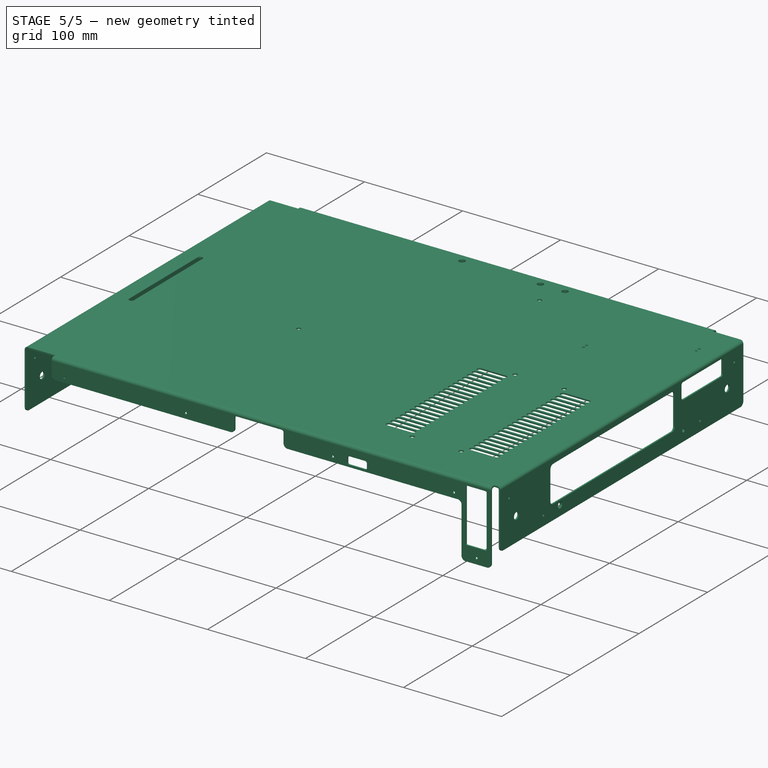
[diagram: stage 5 of 5 — iso view after this stage's code; geometry added in this stage tinted green]
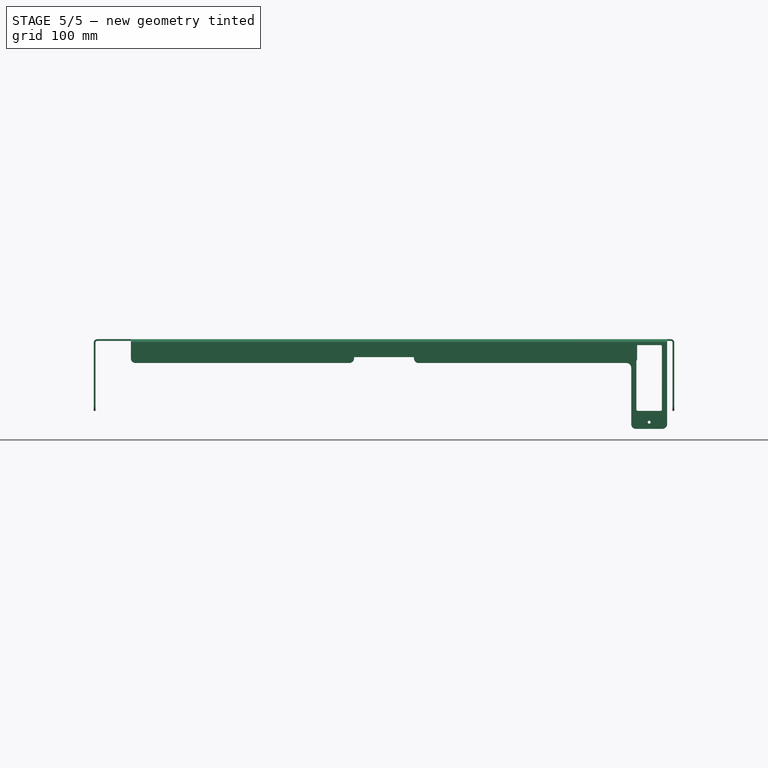
[diagram: stage 5 of 5 — front view after this stage's code; geometry added in this stage tinted green]
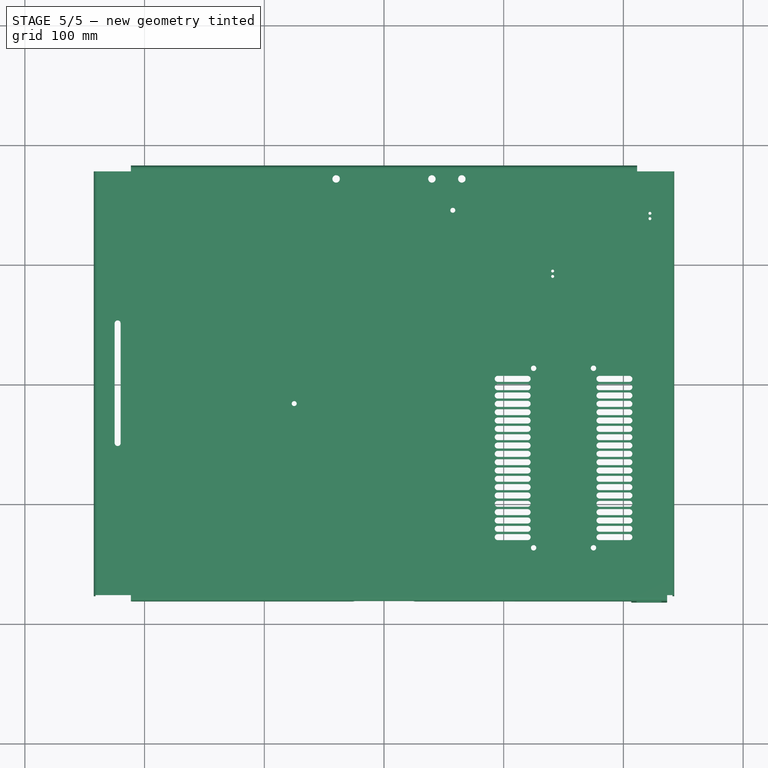
[diagram: stage 5 of 5 — top view after this stage's code; geometry added in this stage tinted green]
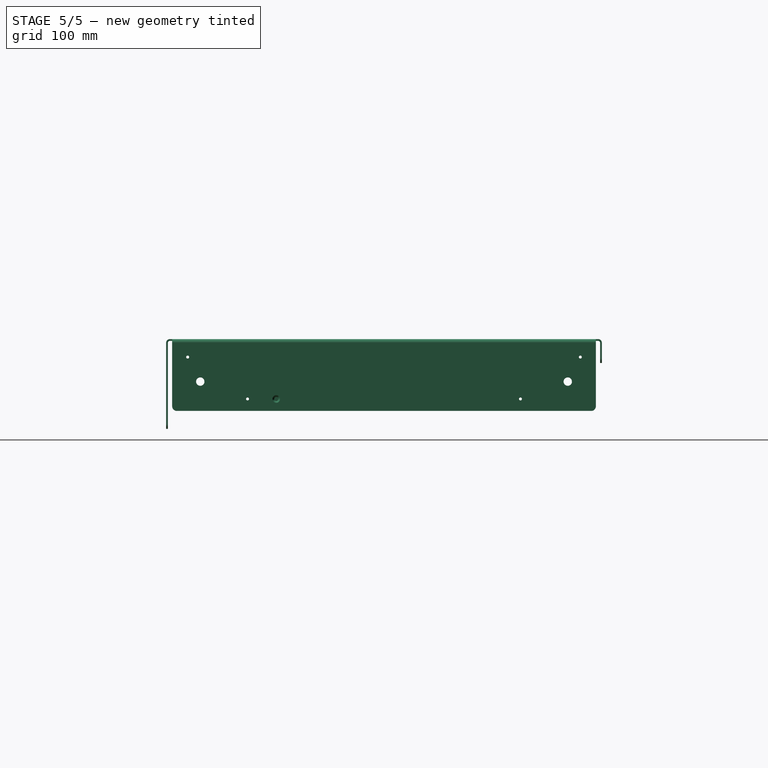
[diagram: stage 5 of 5 — right view after this stage's code; geometry added in this stage tinted green]
FEATURE [PartDesign::Fillet] Fillet006
  Base = -> Pad005 [Edge16,Edge19,Edge5,Edge2]
  Radius = 1
FEATURE [PartDesign::Fillet] Fillet007
  Base = -> Fillet006 [Edge3,Edge36]
  Radius = 4
FEATURE [PartDesign::Fillet] Fillet008
  Base = -> Fillet007 [Edge246,Edge29,Edge240,Edge243]
  Radius = 1.5
FEATURE [PartDesign::Fillet] Fillet009
  Base = -> Fillet008 [Edge241,Edge248,Edge251,Edge254]
  Radius = 3
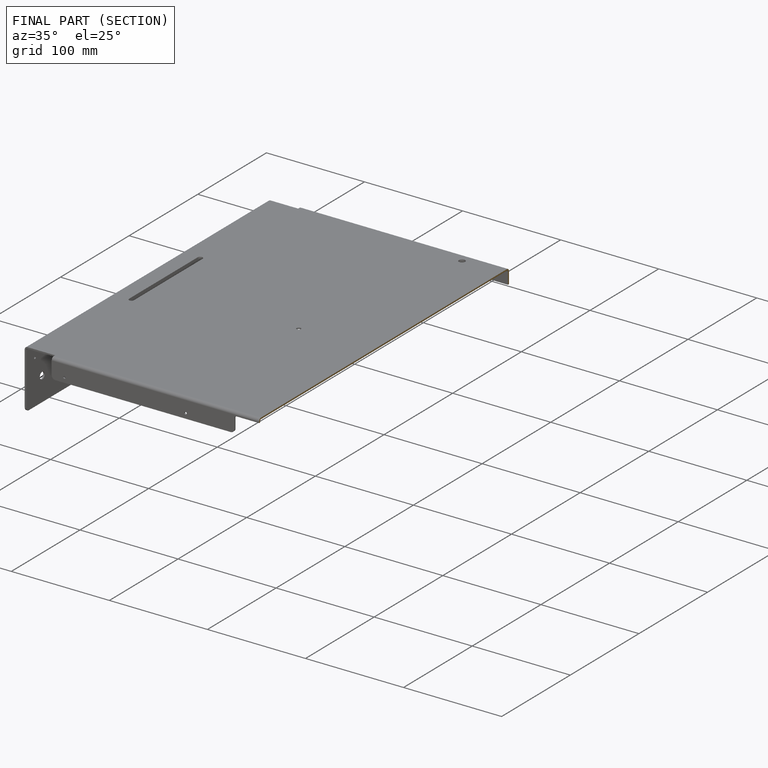
[diagram: finished part — half-section view (interior)]
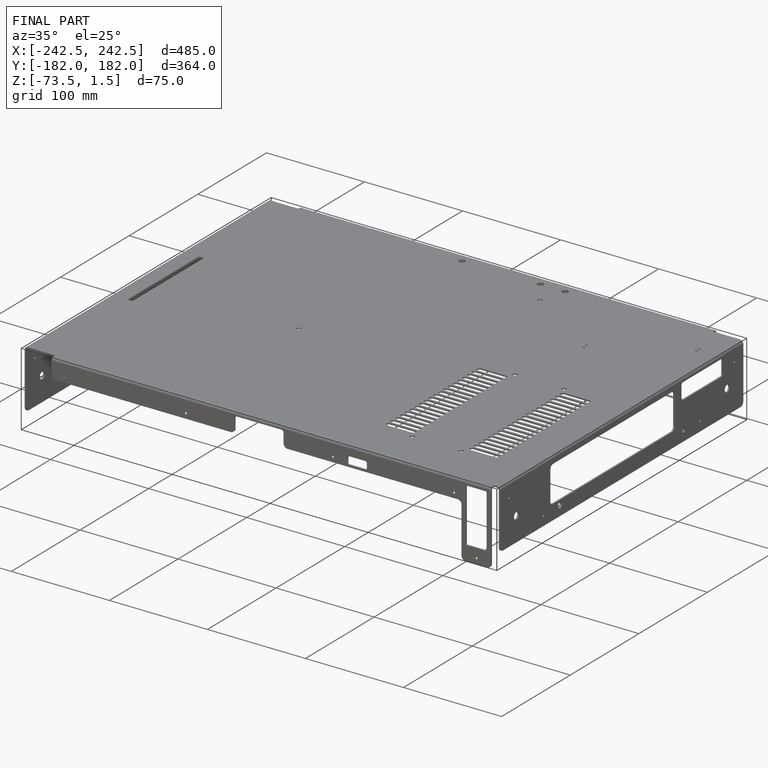
[diagram: finished part — iso view with bounding-box wireframe]
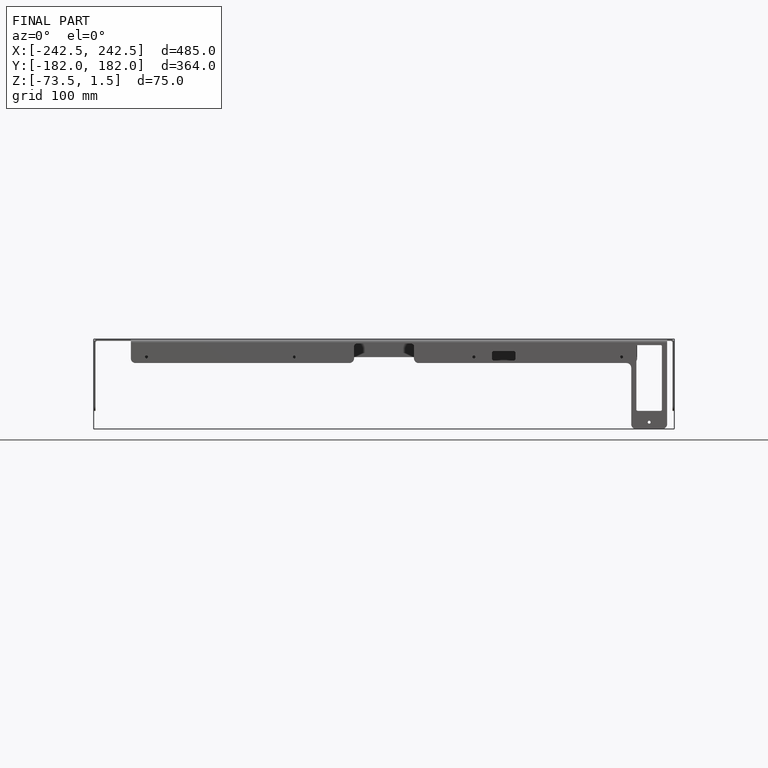
[diagram: finished part — front view with bounding-box wireframe]
